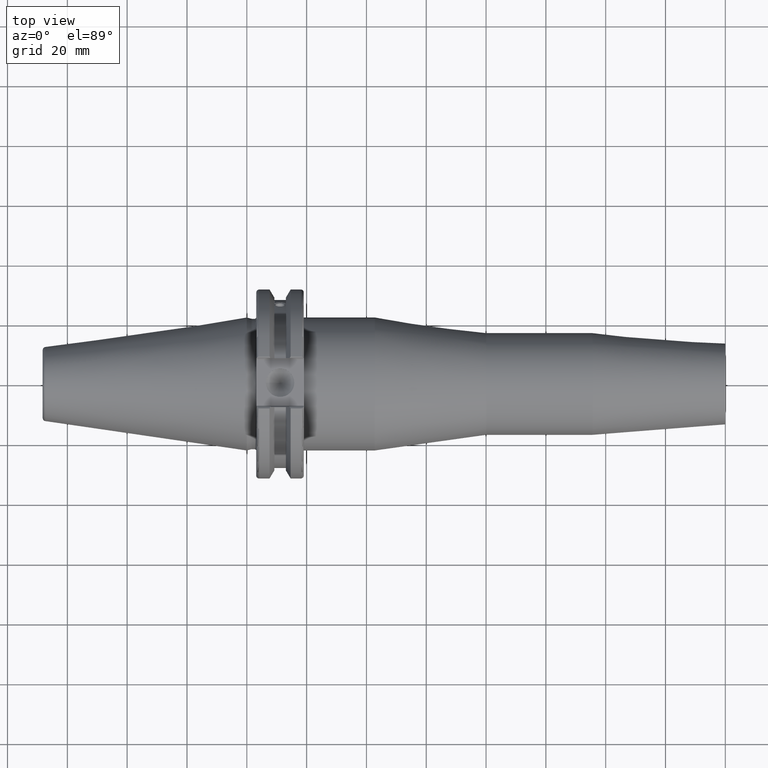
[diagram: clean part render]
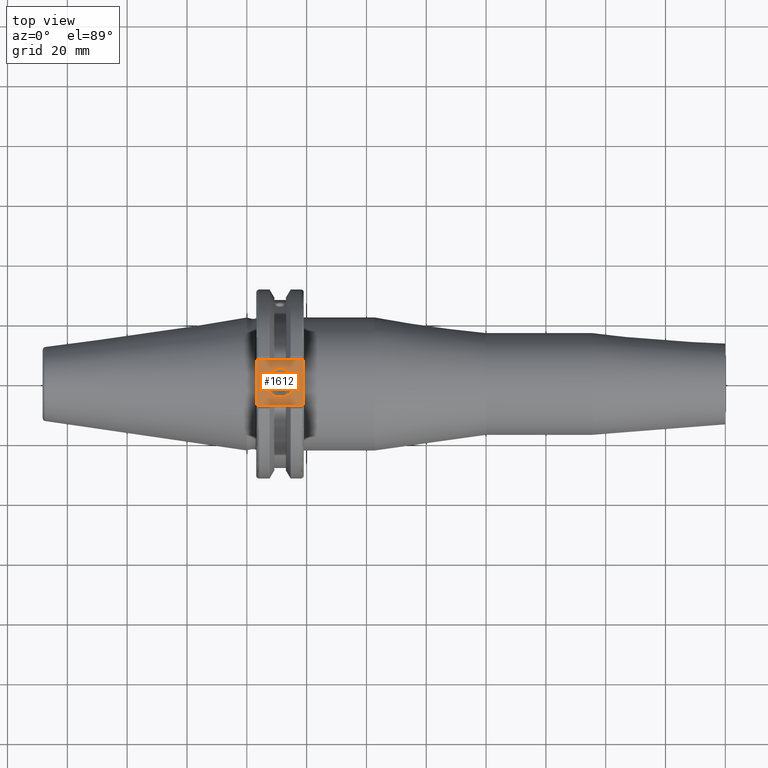
[diagram: same view with one face highlighted and labeled with its STEP entity id]
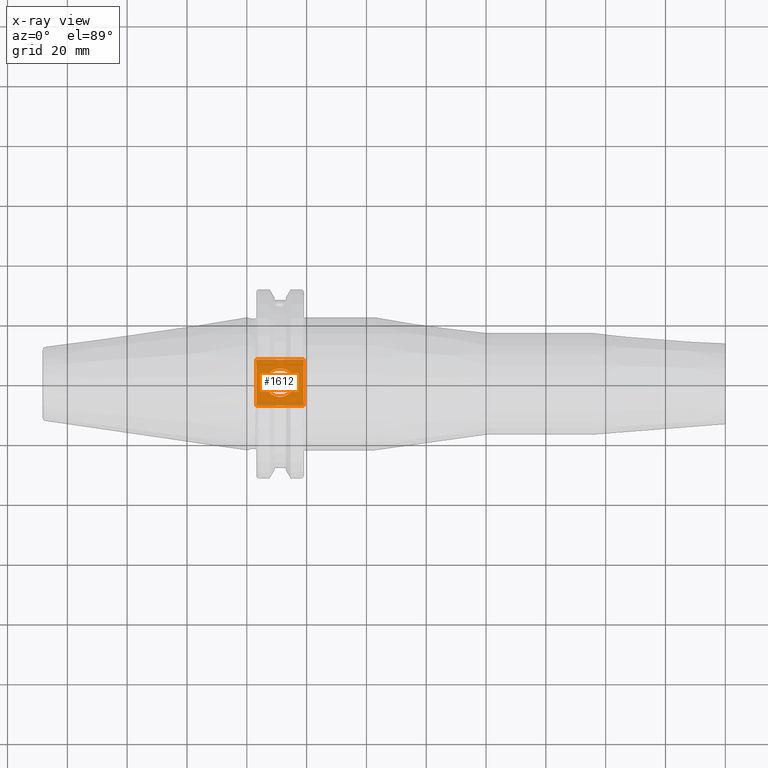
[diagram: x-ray of the same camera — body ghosted, the highlighted face saturated]
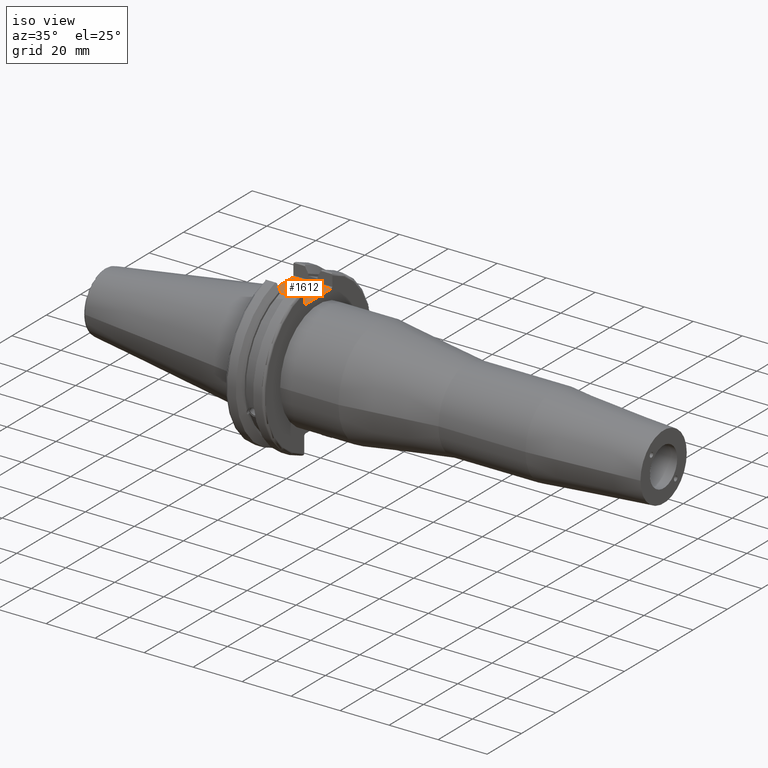
[diagram: same view with one face highlighted and labeled with its STEP entity id]
A machine part, top view. The second image highlights one B-rep face of the part: STEP entity #1612.
The next image is the same camera in x-ray: the body ghosted, the highlighted face saturated — about 0% of this face is hidden behind the body in this view.
A second angle (iso view) of the same face is appended — the face is thin or edge-on in the first view.
In plain terms, the highlighted planar face has unit normal (0, 0, 1).
Its self-contained STEP definition (entity closure, byte-faithful):
#71=PLANE('',#1814);
#90=FACE_BOUND('',#366,.T.);
#258=FACE_OUTER_BOUND('',#365,.T.);
#365=EDGE_LOOP('',(#1481,#1482,#1483,#1484));
#366=EDGE_LOOP('',(#1485));
#419=LINE('',#2757,#519);
#435=LINE('',#2843,#535);
#457=LINE('',#3011,#557);
#459=LINE('',#3014,#559);
#519=VECTOR('',#2093,10.);
#535=VECTOR('',#2127,10.);
#557=VECTOR('',#2203,10.);
#559=VECTOR('',#2207,10.);
#636=CIRCLE('',#1802,4.7625);
#739=VERTEX_POINT('',#2754);
#740=VERTEX_POINT('',#2756);
#760=VERTEX_POINT('',#2840);
#761=VERTEX_POINT('',#2842);
#798=VERTEX_POINT('',#3050);
#933=EDGE_CURVE('',#739,#740,#419,.T.);
#960=EDGE_CURVE('',#760,#761,#435,.T.);
#1008=EDGE_CURVE('',#761,#739,#457,.T.);
#1010=EDGE_CURVE('',#740,#760,#459,.T.);
#1025=EDGE_CURVE('',#798,#798,#636,.T.);
#1481=ORIENTED_EDGE('',*,*,#1008,.F.);
#1482=ORIENTED_EDGE('',*,*,#960,.F.);
#1483=ORIENTED_EDGE('',*,*,#1010,.F.);
#1484=ORIENTED_EDGE('',*,*,#933,.F.);
#1485=ORIENTED_EDGE('',*,*,#1025,.T.);
#1612=ADVANCED_FACE('',(#258,#90),#71,.T.);
#1802=AXIS2_PLACEMENT_3D('',#3051,#2242,#2243);
#1814=AXIS2_PLACEMENT_3D('',#3064,#2267,#2268);
#2093=DIRECTION('',(0.,1.,0.));
#2127=DIRECTION('',(0.,-1.,0.));
#2203=DIRECTION('',(-1.,1.31581988103722E-16,0.));
#2207=DIRECTION('',(1.,0.,0.));
#2242=DIRECTION('center_axis',(0.,0.,-1.));
#2243=DIRECTION('ref_axis',(1.,0.,0.));
#2267=DIRECTION('center_axis',(0.,0.,1.));
#2268=DIRECTION('ref_axis',(1.,0.,0.));
#2754=CARTESIAN_POINT('',(3.175,-7.68999999999999,25.));
#2756=CARTESIAN_POINT('',(3.175,7.69,25.));
#2757=CARTESIAN_POINT('',(3.175,15.875,25.));
#2840=CARTESIAN_POINT('',(19.05,7.69,25.));
#2842=CARTESIAN_POINT('',(19.05,-7.69,25.));
#2843=CARTESIAN_POINT('',(19.05,0.,25.));
#3011=CARTESIAN_POINT('',(9.44125,-7.69,25.));
#3014=CARTESIAN_POINT('',(17.87875,7.69,25.));
#3050=CARTESIAN_POINT('',(6.3716,-5.83238038093927E-16,25.));
#3051=CARTESIAN_POINT('Origin',(11.1341,0.,25.));
#3064=CARTESIAN_POINT('Origin',(15.7075,0.,25.));